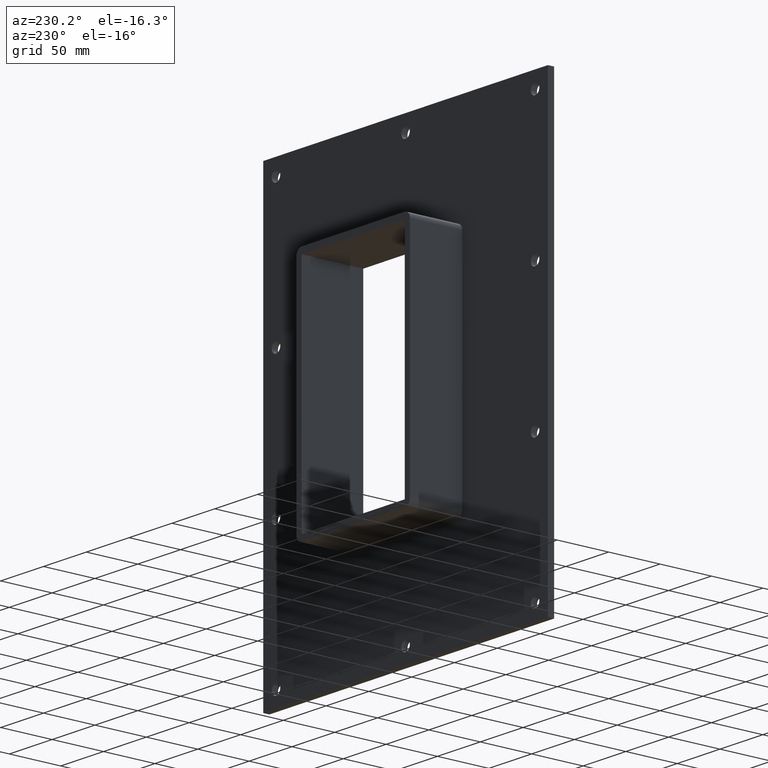
[diagram: clean part render]
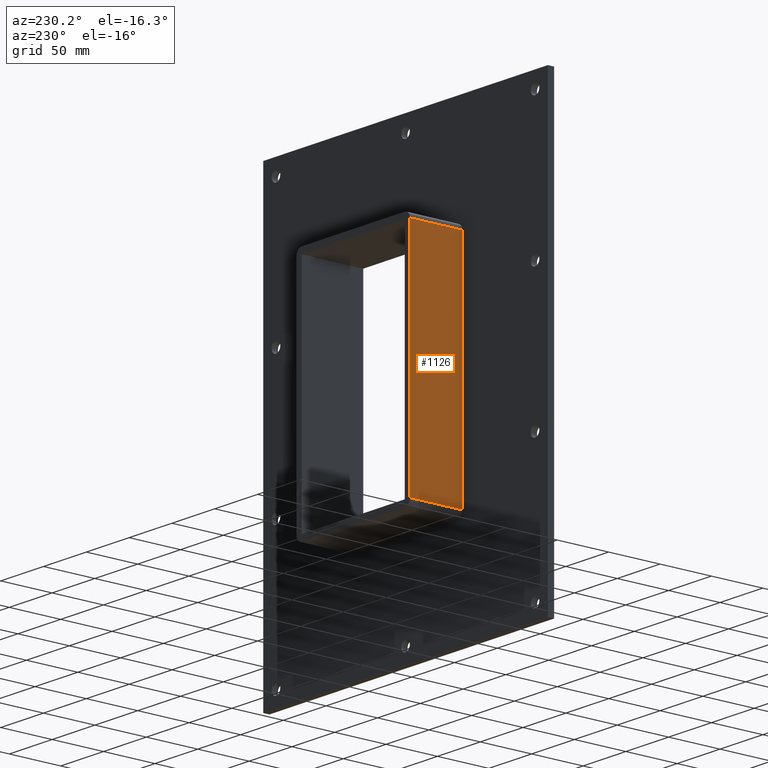
[diagram: same view with one face highlighted and labeled with its STEP entity id]
A machine part, auxiliary view. The second image highlights one B-rep face of the part: STEP entity #1126.
In plain terms, the highlighted planar face has unit normal (-1, 0, 0).
Its self-contained STEP definition (entity closure, byte-faithful):
#419=CARTESIAN_POINT('',(-66.25,6.000000000000001,-109.00000000000003));
#420=VERTEX_POINT('',#419);
#470=CARTESIAN_POINT('',(-66.25,6.000000000000001,108.99999999999999));
#471=VERTEX_POINT('',#470);
#479=CARTESIAN_POINT('',(-66.25,6.000000000000001,-109.00000000000003));
#480=DIRECTION('',(0.0,0.0,1.0));
#481=VECTOR('',#480,218.00000000000003);
#482=LINE('',#479,#481);
#483=EDGE_CURVE('',#420,#471,#482,.T.);
#1084=CARTESIAN_POINT('',(-66.25,57.0,-109.00000000000003));
#1085=VERTEX_POINT('',#1084);
#1086=CARTESIAN_POINT('',(-66.25,6.000000000000001,-109.00000000000003));
#1087=DIRECTION('',(0.0,1.0,0.0));
#1088=VECTOR('',#1087,51.0);
#1089=LINE('',#1086,#1088);
#1090=EDGE_CURVE('',#420,#1085,#1089,.T.);
#1103=CARTESIAN_POINT('',(-66.25,0.0,-115.00000000000001));
#1104=DIRECTION('',(-1.0,0.0,0.0));
#1105=DIRECTION('',(0.0,0.0,1.0));
#1106=AXIS2_PLACEMENT_3D('',#1103,#1104,#1105);
#1107=PLANE('',#1106);
#1108=ORIENTED_EDGE('',*,*,#483,.T.);
#1109=CARTESIAN_POINT('',(-66.25,57.0,108.99999999999997));
#1110=VERTEX_POINT('',#1109);
#1111=CARTESIAN_POINT('',(-66.25,57.0,108.99999999999999));
#1112=DIRECTION('',(0.0,-1.0,0.0));
#1113=VECTOR('',#1112,51.0);
#1114=LINE('',#1111,#1113);
#1115=EDGE_CURVE('',#1110,#471,#1114,.T.);
#1116=ORIENTED_EDGE('',*,*,#1115,.F.);
#1117=CARTESIAN_POINT('',(-66.25,57.0,-109.00000000000001));
#1118=DIRECTION('',(0.0,0.0,1.0));
#1119=VECTOR('',#1118,218.0);
#1120=LINE('',#1117,#1119);
#1121=EDGE_CURVE('',#1085,#1110,#1120,.T.);
#1122=ORIENTED_EDGE('',*,*,#1121,.F.);
#1123=ORIENTED_EDGE('',*,*,#1090,.F.);
#1124=EDGE_LOOP('',(#1108,#1116,#1122,#1123));
#1125=FACE_OUTER_BOUND('',#1124,.T.);
#1126=ADVANCED_FACE('',(#1125),#1107,.T.);